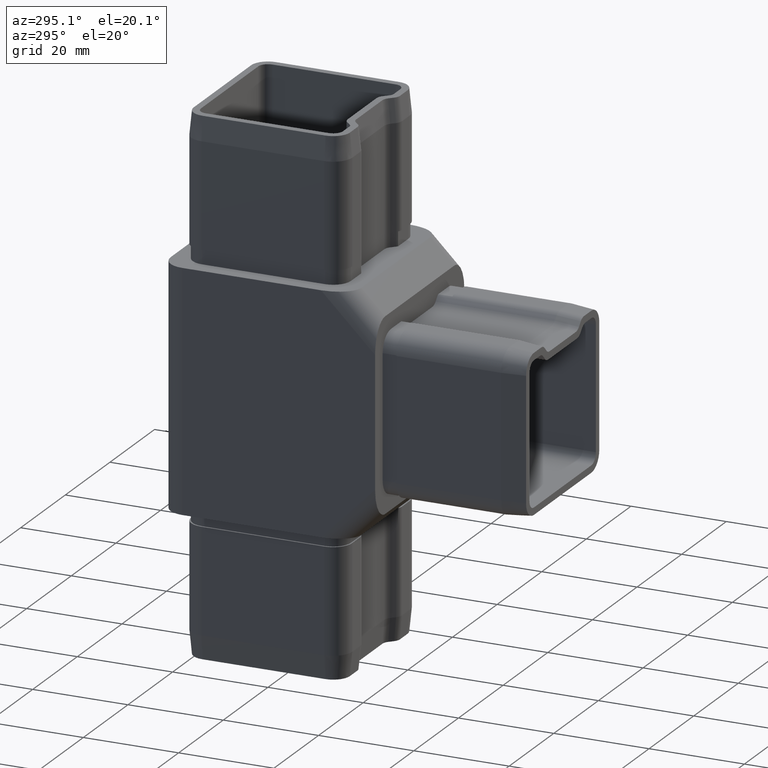
[diagram: clean part render]
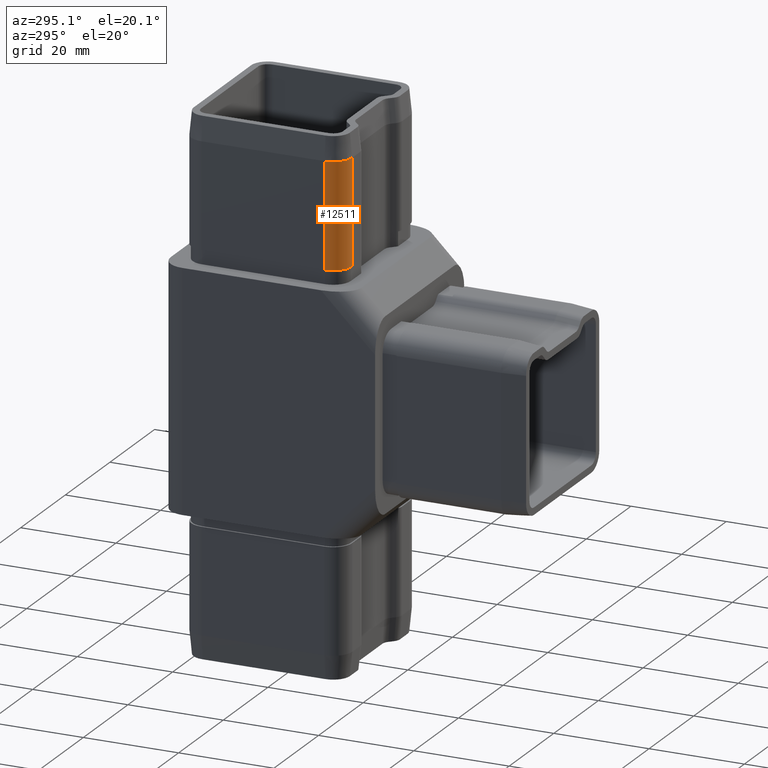
[diagram: same view with one face highlighted and labeled with its STEP entity id]
A machine part, auxiliary view. The second image highlights one B-rep face of the part: STEP entity #12511.
In plain terms, the highlighted cylindrical surface (edge-blend (fillet) strip) has radius 4 mm, axis along (0, 0, -1).
Its self-contained STEP definition (entity closure, byte-faithful):
#76 = CARTESIAN_POINT ( 'NONE',  ( -12.90000000000000600, -10.40000000000000000, 28.00000000000000000 ) ) ;
#209 = CYLINDRICAL_SURFACE ( 'NONE', #1755, 4.000000000000000000 ) ;
#540 = AXIS2_PLACEMENT_3D ( 'NONE', #2414, #11745, #18277 ) ;
#1525 = EDGE_CURVE ( 'NONE', #20175, #5891, #7909, .T. ) ;
#1755 = AXIS2_PLACEMENT_3D ( 'NONE', #12612, #11277, #20548 ) ;
#2414 = CARTESIAN_POINT ( 'NONE',  ( -12.90000000000000600, -10.40000000000000000, 50.00000000000000000 ) ) ;
#2871 = DIRECTION ( 'NONE',  ( -0.0000000000000000000, -0.0000000000000000000, 1.000000000000000000 ) ) ;
#3365 = DIRECTION ( 'NONE',  ( -1.000000000000000000, 0.0000000000000000000, 0.0000000000000000000 ) ) ;
#3811 = ORIENTED_EDGE ( 'NONE', *, *, #13352, .T. ) ;
#4327 = AXIS2_PLACEMENT_3D ( 'NONE', #76, #17692, #3365 ) ;
#4813 = EDGE_CURVE ( 'NONE', #20515, #20175, #15019, .T. ) ;
#5891 = VERTEX_POINT ( 'NONE', #13945 ) ;
#5955 = ORIENTED_EDGE ( 'NONE', *, *, #1525, .F. ) ;
#7909 = CIRCLE ( 'NONE', #4327, 4.000000000000000000 ) ;
#8297 = CARTESIAN_POINT ( 'NONE',  ( -12.90000000000000700, -14.39999999999999900, 28.00000000000000000 ) ) ;
#10820 = VECTOR ( 'NONE', #15230, 1000.000000000000000 ) ;
#11277 = DIRECTION ( 'NONE',  ( 0.0000000000000000000, 0.0000000000000000000, -1.000000000000000000 ) ) ;
#11745 = DIRECTION ( 'NONE',  ( -0.0000000000000000000, -0.0000000000000000000, -1.000000000000000000 ) ) ;
#12511 = ADVANCED_FACE ( 'NONE', ( #14387 ), #209, .T. ) ;
#12612 = CARTESIAN_POINT ( 'NONE',  ( -12.90000000000000600, -10.40000000000000000, 55.00000000000000000 ) ) ;
#13352 = EDGE_CURVE ( 'NONE', #20515, #17064, #19833, .T. ) ;
#13589 = EDGE_CURVE ( 'NONE', #5891, #17064, #16273, .T. ) ;
#13698 = CARTESIAN_POINT ( 'NONE',  ( -12.90000000000000600, -14.40000000000000000, 55.00000000000000000 ) ) ;
#13945 = CARTESIAN_POINT ( 'NONE',  ( -16.90000000000000200, -10.39999999999999700, 28.00000000000000000 ) ) ;
#14042 = CARTESIAN_POINT ( 'NONE',  ( -16.90000000000000600, -10.40000000000000000, 55.00000000000000000 ) ) ;
#14387 = FACE_OUTER_BOUND ( 'NONE', #14641, .T. ) ;
#14641 = EDGE_LOOP ( 'NONE', ( #15316, #3811, #19673, #5955 ) ) ;
#14886 = CARTESIAN_POINT ( 'NONE',  ( -16.89999999999999900, -10.39999999999999900, 50.00000000000000000 ) ) ;
#15019 = LINE ( 'NONE', #13698, #10820 ) ;
#15230 = DIRECTION ( 'NONE',  ( 0.0000000000000000000, 0.0000000000000000000, -1.000000000000000000 ) ) ;
#15316 = ORIENTED_EDGE ( 'NONE', *, *, #4813, .F. ) ;
#16273 = LINE ( 'NONE', #14042, #18316 ) ;
#17064 = VERTEX_POINT ( 'NONE', #14886 ) ;
#17692 = DIRECTION ( 'NONE',  ( -0.0000000000000000000, -0.0000000000000000000, -1.000000000000000000 ) ) ;
#18277 = DIRECTION ( 'NONE',  ( -1.000000000000000000, 0.0000000000000000000, 0.0000000000000000000 ) ) ;
#18316 = VECTOR ( 'NONE', #2871, 1000.000000000000000 ) ;
#19673 = ORIENTED_EDGE ( 'NONE', *, *, #13589, .F. ) ;
#19833 = CIRCLE ( 'NONE', #540, 3.999999999999993300 ) ;
#20175 = VERTEX_POINT ( 'NONE', #8297 ) ;
#20515 = VERTEX_POINT ( 'NONE', #20612 ) ;
#20548 = DIRECTION ( 'NONE',  ( -1.000000000000000000, 0.0000000000000000000, 0.0000000000000000000 ) ) ;
#20612 = CARTESIAN_POINT ( 'NONE',  ( -12.90000000000000600, -14.39999999999999500, 50.00000000000000000 ) ) ;